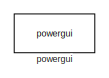
[diagram: root canvas - part 1/5, top left region]
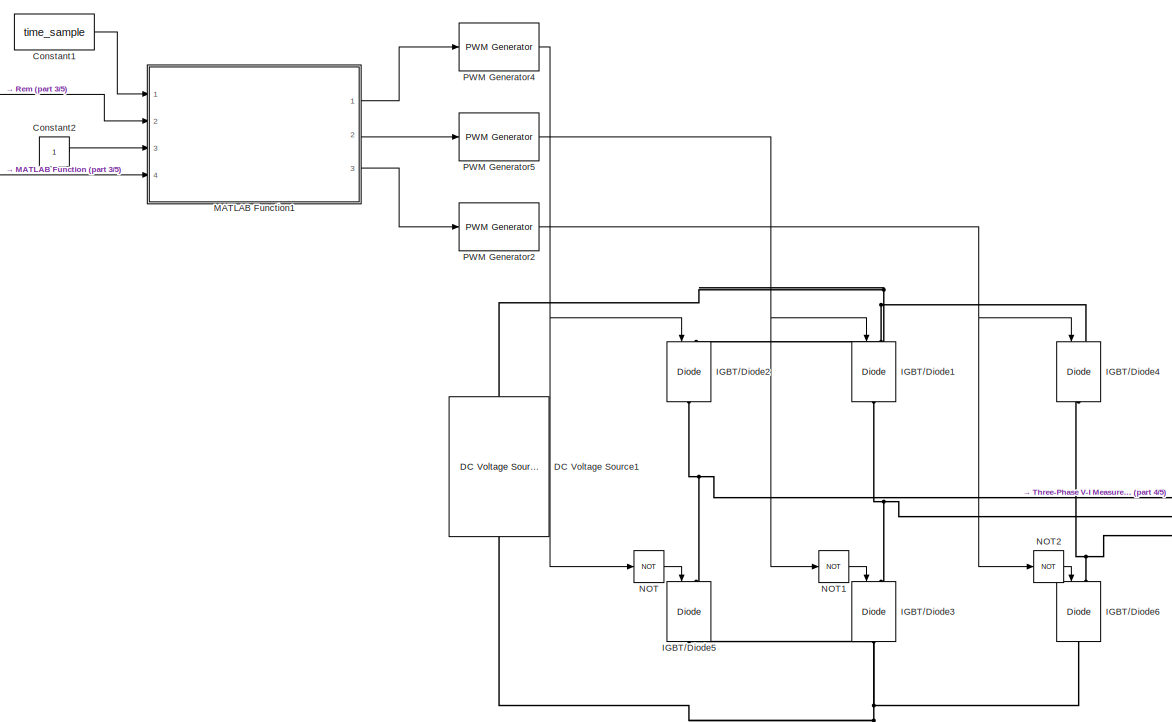
[diagram: root canvas - part 2/5, top center region]
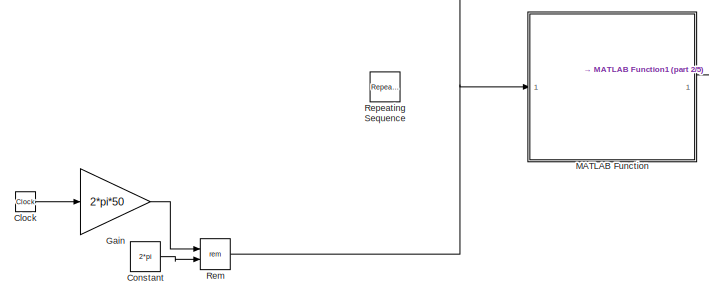
[diagram: root canvas - part 3/5, top left region]
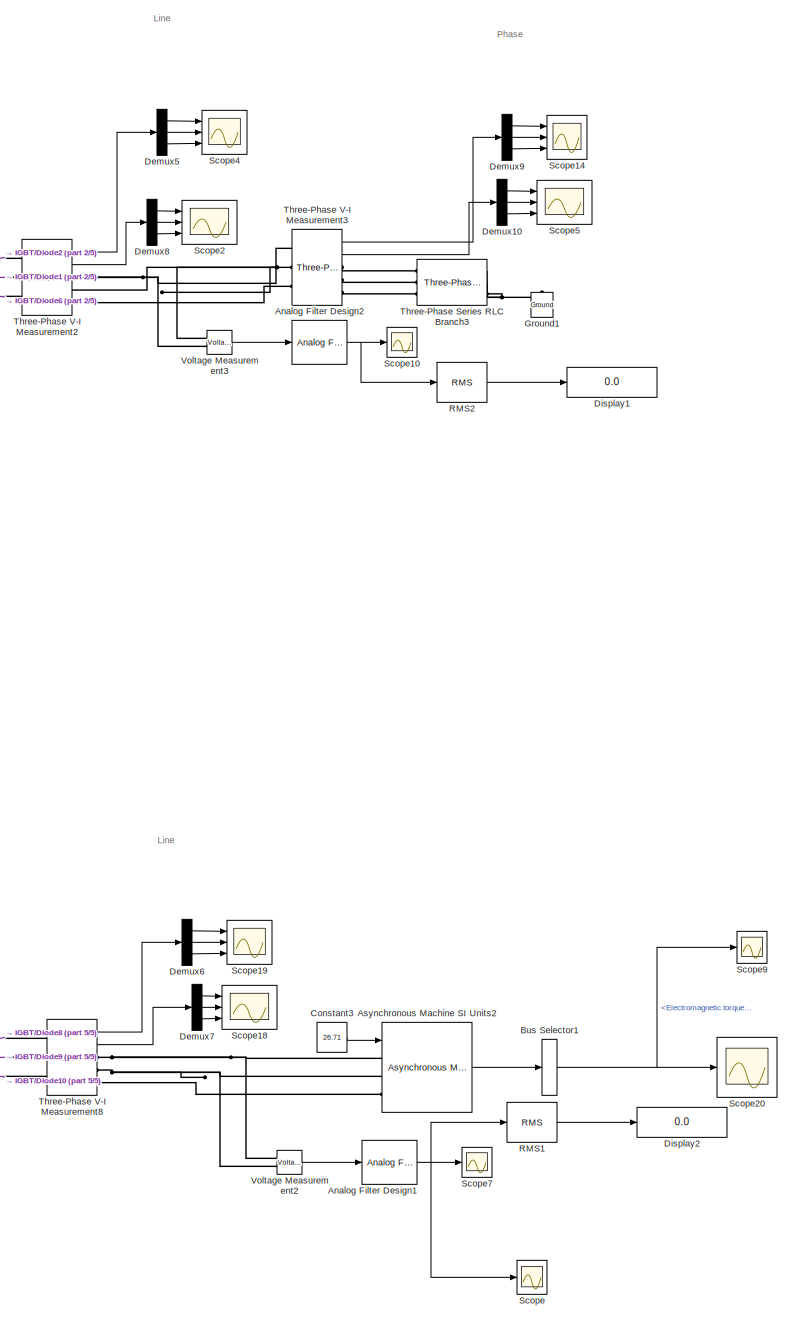
[diagram: root canvas - part 4/5, right side, full height]
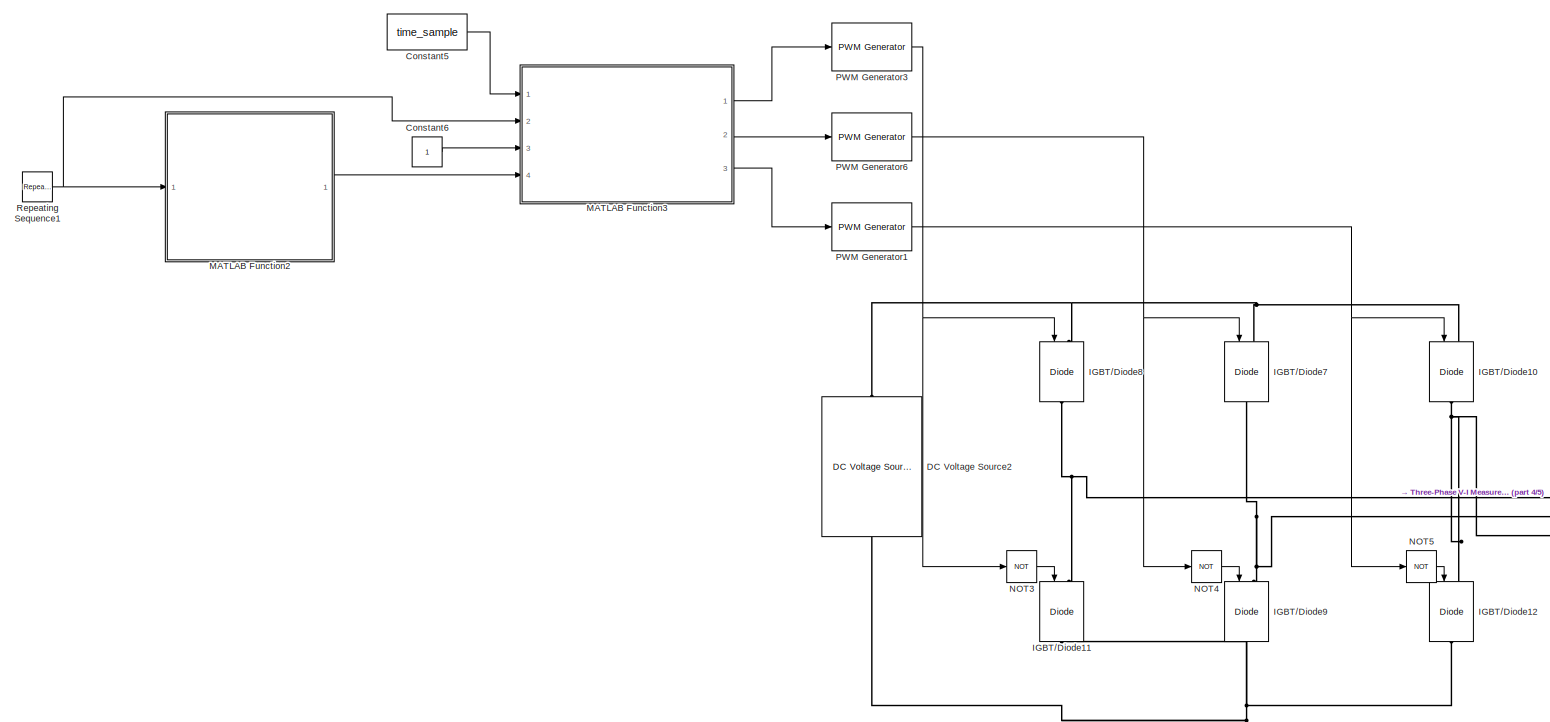
[diagram: root canvas - part 5/5, bottom center region]
MODEL slx_d9e74788e9ec
KIND model
CONFIG AbsTol = auto
CONFIG EnableMultiTasking = off
CONFIG FixedStep = auto
CONFIG MaxStep = 1e-4
CONFIG MinStep = auto
CONFIG RelTol = 1e-3
CONFIG SampleTimeConstraint = Unconstrained
CONFIG SolverName = ode23s
CONFIG StartTime = 0.0
CONFIG StopTime = .02*20
WORKSPACE source: mxarray member
WORKSPACE time_sample = 0.0001
BLOCK [Reference] Analog Filter Design1  REF=dsparch4/Analog
Filter Design
  Ports = [1, 1]
  SourceBlock = dsparch4/Analog\nFilter Design
  SourceProductBaseCode = DS
  SourceType = Analog Filter Design
BLOCK [Reference] Analog Filter Design2  REF=dsparch4/Analog
Filter Design
  Ports = [1, 1]
  SourceBlock = dsparch4/Analog\nFilter Design
  SourceProductBaseCode = DS
  SourceType = Analog Filter Design
BLOCK [Reference] Asynchronous Machine SI Units2  REF=spsAsynchronousMachineSIUnitsLib/Asynchronous Machine
SI Units
  Ports = [1, 1, 0, 0, 0, 3]
  SourceBlock = spsAsynchronousMachineSIUnitsLib/Asynchronous Machine\nSI Units
  SourceProductBaseCode = PS
  SourceType = Asynchronous Machine
BLOCK [BusSelector] Bus Selector1
  OutputSignals = Mechanical.Electromagnetic torque Te (N*m)
  Ports = [1, 1]
BLOCK [Clock] Clock
BLOCK [Constant] Constant
  Value = 2*pi
BLOCK [Constant] Constant1
  Value = time_sample
BLOCK [Constant] Constant2
BLOCK [Constant] Constant3
  Value = 26.71
BLOCK [Constant] Constant5
  Value = time_sample
BLOCK [Constant] Constant6
BLOCK [Reference] DC Voltage Source1  REF=spsDCVoltageSourceLib/DC Voltage Source
  NameLocation = right
  Ports = [0, 0, 0, 0, 0, 1, 1]
  SourceBlock = spsDCVoltageSourceLib/DC Voltage Source
  SourceProductBaseCode = PS
  SourceType = DC Voltage Source
BLOCK [Reference] DC Voltage Source2  REF=spsDCVoltageSourceLib/DC Voltage Source
  NameLocation = right
  Ports = [0, 0, 0, 0, 0, 1, 1]
  SourceBlock = spsDCVoltageSourceLib/DC Voltage Source
  SourceProductBaseCode = PS
  SourceType = DC Voltage Source
BLOCK [Demux] Demux10
  Outputs = 3
  Ports = [1, 3]
BLOCK [Demux] Demux5
  Outputs = 3
  Ports = [1, 3]
BLOCK [Demux] Demux6
  Outputs = 3
  Ports = [1, 3]
BLOCK [Demux] Demux7
  Outputs = 3
  Ports = [1, 3]
BLOCK [Demux] Demux8
  Outputs = 3
  Ports = [1, 3]
BLOCK [Demux] Demux9
  Outputs = 3
  Ports = [1, 3]
BLOCK [Display] Display1
  Decimation = 1
  Ports = [1]
BLOCK [Display] Display2
  Decimation = 1
  Ports = [1]
BLOCK [Gain] Gain
  Gain = 2*pi*50
BLOCK [Reference] Ground1  REF=spsGroundLib/Ground
  NameLocation = right
  Ports = [0, 0, 0, 0, 0, 1]
  SourceBlock = spsGroundLib/Ground
  SourceProductBaseCode = PS
  SourceType = Ground
BLOCK [Reference] IGBT//Diode1  REF=spsIGBTDiodeLib/IGBT//Diode
  NameLocation = left
  Ports = [1, 0, 0, 0, 0, 1, 1]
  SourceBlock = spsIGBTDiodeLib/IGBT//Diode
  SourceProductBaseCode = PS
  SourceType = IGBT/Diode
BLOCK [Reference] IGBT//Diode10  REF=spsIGBTDiodeLib/IGBT//Diode
  NameLocation = left
  Ports = [1, 0, 0, 0, 0, 1, 1]
  SourceBlock = spsIGBTDiodeLib/IGBT//Diode
  SourceProductBaseCode = PS
  SourceType = IGBT/Diode
BLOCK [Reference] IGBT//Diode11  REF=spsIGBTDiodeLib/IGBT//Diode
  NameLocation = left
  Ports = [1, 0, 0, 0, 0, 1, 1]
  SourceBlock = spsIGBTDiodeLib/IGBT//Diode
  SourceProductBaseCode = PS
  SourceType = IGBT/Diode
BLOCK [Reference] IGBT//Diode12  REF=spsIGBTDiodeLib/IGBT//Diode
  NameLocation = left
  Ports = [1, 0, 0, 0, 0, 1, 1]
  SourceBlock = spsIGBTDiodeLib/IGBT//Diode
  SourceProductBaseCode = PS
  SourceType = IGBT/Diode
BLOCK [Reference] IGBT//Diode2  REF=spsIGBTDiodeLib/IGBT//Diode
  NameLocation = left
  Ports = [1, 0, 0, 0, 0, 1, 1]
  SourceBlock = spsIGBTDiodeLib/IGBT//Diode
  SourceProductBaseCode = PS
  SourceType = IGBT/Diode
BLOCK [Reference] IGBT//Diode3  REF=spsIGBTDiodeLib/IGBT//Diode
  NameLocation = left
  Ports = [1, 0, 0, 0, 0, 1, 1]
  SourceBlock = spsIGBTDiodeLib/IGBT//Diode
  SourceProductBaseCode = PS
  SourceType = IGBT/Diode
BLOCK [Reference] IGBT//Diode4  REF=spsIGBTDiodeLib/IGBT//Diode
  NameLocation = left
  Ports = [1, 0, 0, 0, 0, 1, 1]
  SourceBlock = spsIGBTDiodeLib/IGBT//Diode
  SourceProductBaseCode = PS
  SourceType = IGBT/Diode
BLOCK [Reference] IGBT//Diode5  REF=spsIGBTDiodeLib/IGBT//Diode
  NameLocation = left
  Ports = [1, 0, 0, 0, 0, 1, 1]
  SourceBlock = spsIGBTDiodeLib/IGBT//Diode
  SourceProductBaseCode = PS
  SourceType = IGBT/Diode
BLOCK [Reference] IGBT//Diode6  REF=spsIGBTDiodeLib/IGBT//Diode
  NameLocation = left
  Ports = [1, 0, 0, 0, 0, 1, 1]
  SourceBlock = spsIGBTDiodeLib/IGBT//Diode
  SourceProductBaseCode = PS
  SourceType = IGBT/Diode
BLOCK [Reference] IGBT//Diode7  REF=spsIGBTDiodeLib/IGBT//Diode
  NameLocation = left
  Ports = [1, 0, 0, 0, 0, 1, 1]
  SourceBlock = spsIGBTDiodeLib/IGBT//Diode
  SourceProductBaseCode = PS
  SourceType = IGBT/Diode
BLOCK [Reference] IGBT//Diode8  REF=spsIGBTDiodeLib/IGBT//Diode
  NameLocation = left
  Ports = [1, 0, 0, 0, 0, 1, 1]
  SourceBlock = spsIGBTDiodeLib/IGBT//Diode
  SourceProductBaseCode = PS
  SourceType = IGBT/Diode
BLOCK [Reference] IGBT//Diode9  REF=spsIGBTDiodeLib/IGBT//Diode
  NameLocation = left
  Ports = [1, 0, 0, 0, 0, 1, 1]
  SourceBlock = spsIGBTDiodeLib/IGBT//Diode
  SourceProductBaseCode = PS
  SourceType = IGBT/Diode
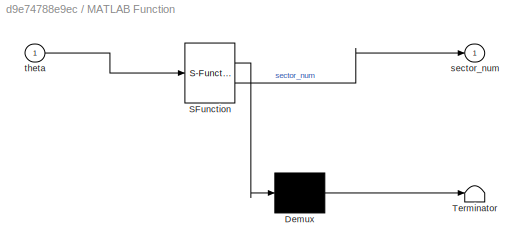
BLOCK [SubSystem] MATLAB Function
  ErrorFcn = Stateflow.Translate.translate
  PermitHierarchicalResolution = ExplicitOnly
  Ports = [1, 1]
  RequestExecContextInheritance = off
  SFBlockType = MATLAB Function
  TreatAsAtomicUnit = on
BLOCK [Demux] MATLAB Function/ Demux 
  Outputs = 1
  Ports = [1, 1]
BLOCK [S-Function] MATLAB Function/ SFunction 
  EnableBusSupport = on
  FunctionName = sf_sfun
  PortCounts = [1 2]
  Ports = [1, 2]
  SFcnIsStateOwnerBlock = off
  SFunctionDeploymentMode = off
  Tag = Stateflow S-Function 2
BLOCK [Terminator] MATLAB Function/ Terminator 
BLOCK [Outport] MATLAB Function/sector_num
BLOCK [Inport] MATLAB Function/theta
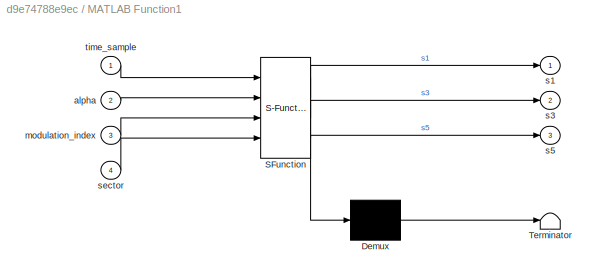
BLOCK [SubSystem] MATLAB Function1
  ErrorFcn = Stateflow.Translate.translate
  PermitHierarchicalResolution = ExplicitOnly
  Ports = [4, 3]
  RequestExecContextInheritance = off
  SFBlockType = MATLAB Function
  TreatAsAtomicUnit = on
BLOCK [Demux] MATLAB Function1/ Demux 
  Outputs = 1
  Ports = [1, 1]
BLOCK [S-Function] MATLAB Function1/ SFunction 
  EnableBusSupport = on
  FunctionName = sf_sfun
  PortCounts = [4 4]
  Ports = [4, 4]
  SFcnIsStateOwnerBlock = off
  SFunctionDeploymentMode = off
  Tag = Stateflow S-Function 1
BLOCK [Terminator] MATLAB Function1/ Terminator 
BLOCK [Inport] MATLAB Function1/alpha
  Port = 2
BLOCK [Inport] MATLAB Function1/modulation_index
  Port = 3
BLOCK [Outport] MATLAB Function1/s1
BLOCK [Outport] MATLAB Function1/s3
  Port = 2
BLOCK [Outport] MATLAB Function1/s5
  Port = 3
BLOCK [Inport] MATLAB Function1/sector
  Port = 4
BLOCK [Inport] MATLAB Function1/time_sample
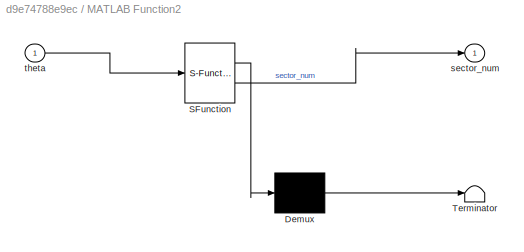
BLOCK [SubSystem] MATLAB Function2
  ErrorFcn = Stateflow.Translate.translate
  PermitHierarchicalResolution = ExplicitOnly
  Ports = [1, 1]
  RequestExecContextInheritance = off
  SFBlockType = MATLAB Function
  TreatAsAtomicUnit = on
BLOCK [Demux] MATLAB Function2/ Demux 
  Outputs = 1
  Ports = [1, 1]
BLOCK [S-Function] MATLAB Function2/ SFunction 
  EnableBusSupport = on
  FunctionName = sf_sfun
  PortCounts = [1 2]
  Ports = [1, 2]
  SFcnIsStateOwnerBlock = off
  SFunctionDeploymentMode = off
  Tag = Stateflow S-Function 3
BLOCK [Terminator] MATLAB Function2/ Terminator 
BLOCK [Outport] MATLAB Function2/sector_num
BLOCK [Inport] MATLAB Function2/theta
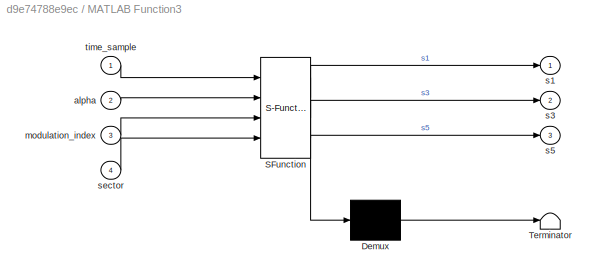
BLOCK [SubSystem] MATLAB Function3
  ErrorFcn = Stateflow.Translate.translate
  PermitHierarchicalResolution = ExplicitOnly
  Ports = [4, 3]
  RequestExecContextInheritance = off
  SFBlockType = MATLAB Function
  TreatAsAtomicUnit = on
BLOCK [Demux] MATLAB Function3/ Demux 
  Outputs = 1
  Ports = [1, 1]
BLOCK [S-Function] MATLAB Function3/ SFunction 
  EnableBusSupport = on
  FunctionName = sf_sfun
  PortCounts = [4 4]
  Ports = [4, 4]
  SFcnIsStateOwnerBlock = off
  SFunctionDeploymentMode = off
  Tag = Stateflow S-Function 4
BLOCK [Terminator] MATLAB Function3/ Terminator 
BLOCK [Inport] MATLAB Function3/alpha
  Port = 2
BLOCK [Inport] MATLAB Function3/modulation_index
  Port = 3
BLOCK [Outport] MATLAB Function3/s1
BLOCK [Outport] MATLAB Function3/s3
  Port = 2
BLOCK [Outport] MATLAB Function3/s5
  Port = 3
BLOCK [Inport] MATLAB Function3/sector
  Port = 4
BLOCK [Inport] MATLAB Function3/time_sample
BLOCK [Logic] NOT
  AllPortsSameDT = off
  IconShape = distinctive
  Operator = NOT
  OutDataTypeStr = boolean
  Ports = [1, 1]
BLOCK [Logic] NOT1
  AllPortsSameDT = off
  IconShape = distinctive
  Operator = NOT
  OutDataTypeStr = boolean
  Ports = [1, 1]
BLOCK [Logic] NOT2
  AllPortsSameDT = off
  IconShape = distinctive
  Operator = NOT
  OutDataTypeStr = boolean
  Ports = [1, 1]
BLOCK [Logic] NOT3
  AllPortsSameDT = off
  IconShape = distinctive
  Operator = NOT
  OutDataTypeStr = boolean
  Ports = [1, 1]
BLOCK [Logic] NOT4
  AllPortsSameDT = off
  IconShape = distinctive
  Operator = NOT
  OutDataTypeStr = boolean
  Ports = [1, 1]
BLOCK [Logic] NOT5
  AllPortsSameDT = off
  IconShape = distinctive
  Operator = NOT
  OutDataTypeStr = boolean
  Ports = [1, 1]
BLOCK [Reference] PWM Generator1  REF=eePwmGenerator/PWM Generator
  Ports = [1, 1]
  SourceBlock = eePwmGenerator/PWM Generator
  SourceProductBaseCode = PS
  SourceType = PWM Generator
BLOCK [Reference] PWM Generator2  REF=eePwmGenerator/PWM Generator
  Ports = [1, 1]
  SourceBlock = eePwmGenerator/PWM Generator
  SourceProductBaseCode = PS
  SourceType = PWM Generator
BLOCK [Reference] PWM Generator3  REF=eePwmGenerator/PWM Generator
  Ports = [1, 1]
  SourceBlock = eePwmGenerator/PWM Generator
  SourceProductBaseCode = PS
  SourceType = PWM Generator
BLOCK [Reference] PWM Generator4  REF=eePwmGenerator/PWM Generator
  Ports = [1, 1]
  SourceBlock = eePwmGenerator/PWM Generator
  SourceProductBaseCode = PS
  SourceType = PWM Generator
BLOCK [Reference] PWM Generator5  REF=eePwmGenerator/PWM Generator
  Ports = [1, 1]
  SourceBlock = eePwmGenerator/PWM Generator
  SourceProductBaseCode = PS
  SourceType = PWM Generator
BLOCK [Reference] PWM Generator6  REF=eePwmGenerator/PWM Generator
  Ports = [1, 1]
  SourceBlock = eePwmGenerator/PWM Generator
  SourceProductBaseCode = PS
  SourceType = PWM Generator
BLOCK [Reference] RMS1  REF=spsRMSLib/RMS
  Ports = [1, 1]
  SourceBlock = spsRMSLib/RMS
  SourceProductBaseCode = PS
  SourceType = RMS
BLOCK [Reference] RMS2  REF=spsRMSLib/RMS
  Ports = [1, 1]
  SourceBlock = spsRMSLib/RMS
  SourceProductBaseCode = PS
  SourceType = RMS
BLOCK [Math] Rem
  Operator = rem
  Ports = [2, 1]
BLOCK [Reference] Repeating Sequence  REF=simulink/Sources/Repeating
Sequence
  Ports = [0, 1]
  SourceBlock = simulink/Sources/Repeating\nSequence
  SourceProductBaseCode = SL
  SourceType = Repeating table
BLOCK [Reference] Repeating Sequence1  REF=simulink/Sources/Repeating
Sequence
  Ports = [0, 1]
  SourceBlock = simulink/Sources/Repeating\nSequence
  SourceProductBaseCode = SL
  SourceType = Repeating table
BLOCK [Scope] Scope
  Floating = off
  NumInputPorts = 1
  Ports = [1]
  ScopeSpecificationString = Simulink.scopes.TimeScopeBlockCfg('CurrentConfiguration', extmgr.ConfigurationSet(extmgr.Configuration('Core','General UI',true),extmgr.Configuration('Core','Source UI',true),extmgr.Configuration('Sources','WiredSimulink',true,'DataLoggingVariableName','ScopeData10'),extmgr.Configuration('Visuals','Time Domain',true,'SerializedDisplays',{struct('MinYLimReal','-701.21382','MaxYLimReal','701.25826',...<+1486ch>
BLOCK [Scope] Scope10
  Floating = off
  NumInputPorts = 1
  Ports = [1]
  ScopeSpecificationString = Simulink.scopes.TimeScopeBlockCfg('CurrentConfiguration', extmgr.ConfigurationSet(extmgr.Configuration('Core','General UI',true,'FigureColor',[1 1 1]),extmgr.Configuration('Core','Source UI',true),extmgr.Configuration('Sources','WiredSimulink',true,'DataLoggingVariableName','ScopeData2','DataLoggingSaveFormat','StructureWithTime'),extmgr.Configuration('Visuals','Time Domain',true,'SerializedDispla...<+2142ch>
BLOCK [Scope] Scope14
  Floating = off
  NumInputPorts = 3
  Ports = [3]
  ScopeSpecificationString = Simulink.scopes.TimeScopeBlockCfg('CurrentConfiguration', extmgr.ConfigurationSet(extmgr.Configuration('Core','General UI',true,'FigureColor',[1 1 1]),extmgr.Configuration('Core','Source UI',true),extmgr.Configuration('Sources','WiredSimulink',true,'DataLoggingVariableName','ScopeData3','DataLoggingSaveFormat','StructureWithTime'),extmgr.Configuration('Visuals','Time Domain',true,'SerializedDispla...<+3519ch>
BLOCK [Scope] Scope18
  Floating = off
  NumInputPorts = 3
  Ports = [3]
  ScopeSpecificationString = Simulink.scopes.TimeScopeBlockCfg('CurrentConfiguration', extmgr.ConfigurationSet(extmgr.Configuration('Core','General UI',true,'FigureColor',[1 1 1]),extmgr.Configuration('Core','Source UI',true),extmgr.Configuration('Sources','WiredSimulink',true,'DataLoggingVariableName','SVM_ILine_Motor_load','DataLogging',true,'DataLoggingSaveFormat','StructureWithTime'),extmgr.Configuration('Visuals','Time D...<+3499ch>
BLOCK [Scope] Scope19
  Floating = off
  NumInputPorts = 3
  Ports = [3]
  ScopeSpecificationString = Simulink.scopes.TimeScopeBlockCfg('CurrentConfiguration', extmgr.ConfigurationSet(extmgr.Configuration('Core','General UI',true,'FigureColor',[1 1 1]),extmgr.Configuration('Core','Source UI',true),extmgr.Configuration('Sources','WiredSimulink',true,'DataLoggingVariableName','ScopeData6','DataLoggingSaveFormat','StructureWithTime'),extmgr.Configuration('Visuals','Time Domain',true,'SerializedDispla...<+3455ch>
BLOCK [Scope] Scope2
  Floating = off
  NumInputPorts = 3
  Ports = [3]
  ScopeSpecificationString = Simulink.scopes.TimeScopeBlockCfg('CurrentConfiguration', extmgr.ConfigurationSet(extmgr.Configuration('Core','General UI',true,'FigureColor',[1 1 1]),extmgr.Configuration('Core','Source UI',true),extmgr.Configuration('Sources','WiredSimulink',true,'DataLoggingVariableName','SVM_ILine_Z_load','DataLogging',true,'DataLoggingSaveFormat','StructureWithTime'),extmgr.Configuration('Visuals','Time Domai...<+3591ch>
BLOCK [Scope] Scope20
  Floating = off
  NumInputPorts = 1
  Ports = [1]
  ScopeSpecificationString = Simulink.scopes.TimeScopeBlockCfg('CurrentConfiguration', extmgr.ConfigurationSet(extmgr.Configuration('Core','General UI',true,'FigureColor',[1 1 1]),extmgr.Configuration('Core','Source UI',true),extmgr.Configuration('Sources','WiredSimulink',true,'DataLoggingVariableName','ScopeData7','DataLoggingSaveFormat','StructureWithTime'),extmgr.Configuration('Visuals','Time Domain',true,'SerializedDispla...<+2114ch>
BLOCK [Scope] Scope4
  Floating = off
  NumInputPorts = 3
  Ports = [3]
  ScopeSpecificationString = Simulink.scopes.TimeScopeBlockCfg('CurrentConfiguration', extmgr.ConfigurationSet(extmgr.Configuration('Core','General UI',true,'FigureColor',[1 1 1]),extmgr.Configuration('Core','Source UI',true),extmgr.Configuration('Sources','WiredSimulink',true,'DataLoggingVariableName','ScopeData5','DataLoggingSaveFormat','StructureWithTime'),extmgr.Configuration('Visuals','Time Domain',true,'SerializedDispla...<+3478ch>
BLOCK [Scope] Scope5
  Floating = off
  NumInputPorts = 3
  Ports = [3]
  ScopeSpecificationString = Simulink.scopes.TimeScopeBlockCfg('CurrentConfiguration', extmgr.ConfigurationSet(extmgr.Configuration('Core','General UI',true,'FigureColor',[1 1 1]),extmgr.Configuration('Core','Source UI',true),extmgr.Configuration('Sources','WiredSimulink',true,'DataLoggingSaveFormat','StructureWithTime'),extmgr.Configuration('Visuals','Time Domain',true,'SerializedDisplays',{struct('MinYLimReal','-31.00367','...<+3470ch>
BLOCK [Scope] Scope7
  Floating = off
  NumInputPorts = 1
  Ports = [1]
  ScopeSpecificationString = Simulink.scopes.TimeScopeBlockCfg('CurrentConfiguration', extmgr.ConfigurationSet(extmgr.Configuration('Core','General UI',true,'FigureColor',[1 1 1]),extmgr.Configuration('Core','Source UI',true),extmgr.Configuration('Sources','WiredSimulink',true,'DataLoggingVariableName','ScopeData8','DataLoggingSaveFormat','StructureWithTime'),extmgr.Configuration('Visuals','Time Domain',true,'SerializedDispla...<+2141ch>
BLOCK [Scope] Scope9
  Floating = off
  NumInputPorts = 1
  Ports = [1]
  ScopeSpecificationString = Simulink.scopes.TimeScopeBlockCfg('CurrentConfiguration', extmgr.ConfigurationSet(extmgr.Configuration('Core','General UI',true),extmgr.Configuration('Core','Source UI',true),extmgr.Configuration('Sources','WiredSimulink',true,'DataLoggingVariableName','ScopeData9'),extmgr.Configuration('Visuals','Time Domain',true,'SerializedDisplays',{struct('MinYLimReal','-21.40263','MaxYLimReal','173.77047','Y...<+1500ch>
BLOCK [Reference] Three-Phase Series RLC Branch3  REF=spsThreePhaseSeriesRLCBranchLib/Three-Phase
Series RLC Branch
  AttributesFormatString = \n
  Ports = [0, 0, 0, 0, 0, 3, 3]
  SourceBlock = spsThreePhaseSeriesRLCBranchLib/Three-Phase\nSeries RLC Branch
  SourceProductBaseCode = PS
  SourceType = Three-Phase Series RLC Branch
BLOCK [Reference] Three-Phase V-I Measurement2  REF=spsThreePhaseVIMeasurementLib/Three-Phase
V-I Measurement
  Ports = [0, 2, 0, 0, 0, 3, 3]
  SourceBlock = spsThreePhaseVIMeasurementLib/Three-Phase\nV-I Measurement
  SourceProductBaseCode = PS
  SourceType = Three-Phase VI Measurement
BLOCK [Reference] Three-Phase V-I Measurement3  REF=spsThreePhaseVIMeasurementLib/Three-Phase
V-I Measurement
  Ports = [0, 2, 0, 0, 0, 3, 3]
  SourceBlock = spsThreePhaseVIMeasurementLib/Three-Phase\nV-I Measurement
  SourceProductBaseCode = PS
  SourceType = Three-Phase VI Measurement
BLOCK [Reference] Three-Phase V-I Measurement8  REF=spsThreePhaseVIMeasurementLib/Three-Phase
V-I Measurement
  Ports = [0, 2, 0, 0, 0, 3, 3]
  SourceBlock = spsThreePhaseVIMeasurementLib/Three-Phase\nV-I Measurement
  SourceProductBaseCode = PS
  SourceType = Three-Phase VI Measurement
BLOCK [Reference] Voltage Measurement2  REF=spsVoltageMeasurementLib/Voltage Measurement
  Ports = [0, 1, 0, 0, 0, 2]
  SourceBlock = spsVoltageMeasurementLib/Voltage Measurement
  SourceProductBaseCode = PS
  SourceType = Voltage Measurement
  UserDataPersistent = on
BLOCK [Reference] Voltage Measurement3  REF=spsVoltageMeasurementLib/Voltage Measurement
  Ports = [0, 1, 0, 0, 0, 2]
  SourceBlock = spsVoltageMeasurementLib/Voltage Measurement
  SourceProductBaseCode = PS
  SourceType = Voltage Measurement
  UserDataPersistent = on
BLOCK [Reference] powergui  REF=spspowerguiLib/powergui
  Ports = []
  Priority = 1
  SourceBlock = spspowerguiLib/powergui
  SourceProductBaseCode = PS
  SourceType = PSB option menu block
ANNOTATION (root): Line
ANNOTATION (root): Phase
NET Analog Filter Design1:1 -> RMS1:1, Scope7:1, Scope:1
NET Analog Filter Design2:1 -> RMS2:1, Scope10:1
LINE Asynchronous Machine SI Units2:1 -> Bus Selector1:1
NET Bus Selector1:1 -> Scope20:1, Scope9:1
LINE Clock:1 -> Gain:1
LINE Constant1:1 -> MATLAB Function1:1
LINE Constant2:1 -> MATLAB Function1:3
LINE Constant3:1 -> Asynchronous Machine SI Units2:1
LINE Constant5:1 -> MATLAB Function3:1
LINE Constant6:1 -> MATLAB Function3:3
LINE Constant:1 -> Rem:2
LINE Demux10:1 -> Scope5:1
LINE Demux10:2 -> Scope5:2
LINE Demux10:3 -> Scope5:3
LINE Demux5:1 -> Scope4:1
LINE Demux5:2 -> Scope4:2
LINE Demux5:3 -> Scope4:3
LINE Demux6:1 -> Scope19:1
LINE Demux6:2 -> Scope19:2
LINE Demux6:3 -> Scope19:3
LINE Demux7:1 -> Scope18:1
LINE Demux7:2 -> Scope18:2
LINE Demux7:3 -> Scope18:3
LINE Demux8:1 -> Scope2:1
LINE Demux8:2 -> Scope2:2
LINE Demux8:3 -> Scope2:3
LINE Demux9:1 -> Scope14:1
LINE Demux9:2 -> Scope14:2
LINE Demux9:3 -> Scope14:3
LINE Gain:1 -> Rem:1
LINE MATLAB Function1:1 -> PWM Generator4:1
LINE MATLAB Function1:2 -> PWM Generator5:1
LINE MATLAB Function1:3 -> PWM Generator2:1
LINE MATLAB Function2:1 -> MATLAB Function3:4
LINE MATLAB Function3:1 -> PWM Generator3:1
LINE MATLAB Function3:2 -> PWM Generator6:1
LINE MATLAB Function3:3 -> PWM Generator1:1
LINE MATLAB Function:1 -> MATLAB Function1:4
LINE NOT1:1 -> IGBT//Diode3:1
LINE NOT2:1 -> IGBT//Diode6:1
LINE NOT3:1 -> IGBT//Diode11:1
LINE NOT4:1 -> IGBT//Diode9:1
LINE NOT5:1 -> IGBT//Diode12:1
LINE NOT:1 -> IGBT//Diode5:1
NET PWM Generator1:1 -> IGBT//Diode10:1, NOT5:1
NET PWM Generator2:1 -> IGBT//Diode4:1, NOT2:1
NET PWM Generator3:1 -> IGBT//Diode8:1, NOT3:1
NET PWM Generator4:1 -> IGBT//Diode2:1, NOT:1
NET PWM Generator5:1 -> IGBT//Diode1:1, NOT1:1
NET PWM Generator6:1 -> IGBT//Diode7:1, NOT4:1
LINE RMS1:1 -> Display2:1
LINE RMS2:1 -> Display1:1
NET Rem:1 -> MATLAB Function1:2, MATLAB Function:1
NET Repeating Sequence1:1 -> MATLAB Function2:1, MATLAB Function3:2
LINE Three-Phase V-I Measurement2:1 -> Demux5:1
LINE Three-Phase V-I Measurement2:2 -> Demux8:1
LINE Three-Phase V-I Measurement3:1 -> Demux9:1
LINE Three-Phase V-I Measurement3:2 -> Demux10:1
LINE Three-Phase V-I Measurement8:1 -> Demux6:1
LINE Three-Phase V-I Measurement8:2 -> Demux7:1
LINE Voltage Measurement2:1 -> Analog Filter Design1:1
LINE Voltage Measurement3:1 -> Analog Filter Design2:1
PNET net1: Asynchronous Machine SI Units2:LConn1 -- Three-Phase V-I Measurement8:RConn1 -- Voltage Measurement2:LConn1
PNET net2: Asynchronous Machine SI Units2:LConn2 -- Three-Phase V-I Measurement8:RConn2 -- Voltage Measurement2:LConn2
PLINE Asynchronous Machine SI Units2:LConn3 -- Three-Phase V-I Measurement8:RConn3
PNET net3: DC Voltage Source1:LConn1 -- IGBT//Diode3:RConn1 -- IGBT//Diode5:RConn1 -- IGBT//Diode6:RConn1
PNET net4: DC Voltage Source1:RConn1 -- IGBT//Diode1:LConn1 -- IGBT//Diode2:LConn1 -- IGBT//Diode4:LConn1
PNET net5: DC Voltage Source2:LConn1 -- IGBT//Diode11:RConn1 -- IGBT//Diode12:RConn1 -- IGBT//Diode9:RConn1
PNET net6: DC Voltage Source2:RConn1 -- IGBT//Diode10:LConn1 -- IGBT//Diode7:LConn1 -- IGBT//Diode8:LConn1
PNET net7: Ground1:LConn1 -- Three-Phase Series RLC Branch3:RConn1 -- Three-Phase Series RLC Branch3:RConn2 -- Three-Phase Series RLC Branch3:RConn3
PNET net8: IGBT//Diode10:RConn1 -- IGBT//Diode12:LConn1 -- Three-Phase V-I Measurement8:LConn3
PNET net9: IGBT//Diode11:LConn1 -- IGBT//Diode8:RConn1 -- Three-Phase V-I Measurement8:LConn1
PNET net10: IGBT//Diode1:RConn1 -- IGBT//Diode3:LConn1 -- Three-Phase V-I Measurement2:LConn2
PNET net11: IGBT//Diode2:RConn1 -- IGBT//Diode5:LConn1 -- Three-Phase V-I Measurement2:LConn1
PNET net12: IGBT//Diode4:RConn1 -- IGBT//Diode6:LConn1 -- Three-Phase V-I Measurement2:LConn3
PNET net13: IGBT//Diode7:RConn1 -- IGBT//Diode9:LConn1 -- Three-Phase V-I Measurement8:LConn2
PLINE Three-Phase Series RLC Branch3:LConn1 -- Three-Phase V-I Measurement3:RConn1
PLINE Three-Phase Series RLC Branch3:LConn2 -- Three-Phase V-I Measurement3:RConn2
PLINE Three-Phase Series RLC Branch3:LConn3 -- Three-Phase V-I Measurement3:RConn3
PNET net14: Three-Phase V-I Measurement2:RConn1 -- Three-Phase V-I Measurement3:LConn1 -- Voltage Measurement3:LConn2
PNET net15: Three-Phase V-I Measurement2:RConn2 -- Three-Phase V-I Measurement3:LConn2 -- Voltage Measurement3:LConn1
PLINE Three-Phase V-I Measurement2:RConn3 -- Three-Phase V-I Measurement3:LConn3
note: NET lines group one-source signal fan-out (src -> all destinations, sorted); 1:1 wires keep LINE; PNET lines group multi-terminal physical nets as a canonical sorted terminal list (undirected conserving connections); 2-terminal nets keep the pairwise PLINE form
CHART MATLAB Function1 states=1 transitions=1
  STATE_LABEL 'eML_blk_kernel()'
  STATE_LABEL 'SCRIPT:\nfunction [s1, s3, s5] = calcDutyCycle(time_sample, alpha, modulation_index, sector)\ntheta_prime = alpha-(pi/3)*(sector-1);\nta = modulation_index * time_sample*sin((pi/3)-theta_prime);\ntb = modulation_index * time_sample*sin(theta_prime);\nto = time_sample - ta - tb;\n\nX_duty_cycle = (.5*to+ta+tb)/time_sample;\nY2_duty_cycle = (.5*to+ta)/time_sample;\nY1_duty_cycle = (.5*to+tb)/time_sample;\nZ_d...<+675ch>'
CHART MATLAB Function states=1 transitions=1
  STATE_LABEL 'eML_blk_kernel()'
  STATE_LABEL 'SCRIPT:\nfunction sector_num = get_sector_number(theta)\nif (theta>=0 && theta <(pi/3)) \n    sector_num = 1;\nelseif (theta >=(1*pi/3) && theta<(2*pi/3)) \n    sector_num = 2;\nelseif (theta >=(2*pi/3) && theta<(3*pi/3)) \n    sector_num = 3;\nelseif (theta >=(3*pi/3) && theta<(4*pi/3)) \n    sector_num = 4;\nelseif (theta >=(4*pi/3) && theta<(5*pi/3)) \n    sector_num = 5;\nelse\n    sector_num = 6;\nend'
CHART MATLAB Function2 states=1 transitions=1
  STATE_LABEL 'eML_blk_kernel()'
  STATE_LABEL 'SCRIPT:\nfunction sector_num = get_sector_number(theta)\nif (theta>=0 && theta <(pi/3)) \n    sector_num = 1;\nelseif (theta >=(1*pi/3) && theta<(2*pi/3)) \n    sector_num = 2;\nelseif (theta >=(2*pi/3) && theta<(3*pi/3)) \n    sector_num = 3;\nelseif (theta >=(3*pi/3) && theta<(4*pi/3)) \n    sector_num = 4;\nelseif (theta >=(4*pi/3) && theta<(5*pi/3)) \n    sector_num = 5;\nelse\n    sector_num = 6;\nend'
CHART MATLAB Function3 states=1 transitions=1
  STATE_LABEL 'eML_blk_kernel()'
  STATE_LABEL 'SCRIPT:\nfunction [s1, s3, s5] = fcn(time_sample, alpha, modulation_index, sector)\n\n\ntheta_prime = alpha-(pi/3)*(sector-1);\nta = modulation_index * time_sample*sin((pi/3)-theta_prime);\ntb = modulation_index * time_sample*sin(theta_prime);\n\n%ta = sqrt(3)*time_sample*((V_d/sqrt(3))/V_d)*sin((pi/3)-(alpha-(pi/3)*(sector-1));\n\n% tb = time_sample * modulation_index * sin((alpha-(sector-1)*pi/3));\nto = t...<+823ch>'
CHART  states=0 transitions=0
CHART  states=0 transitions=0
CHART  states=0 transitions=0
CHART  states=0 transitions=0
